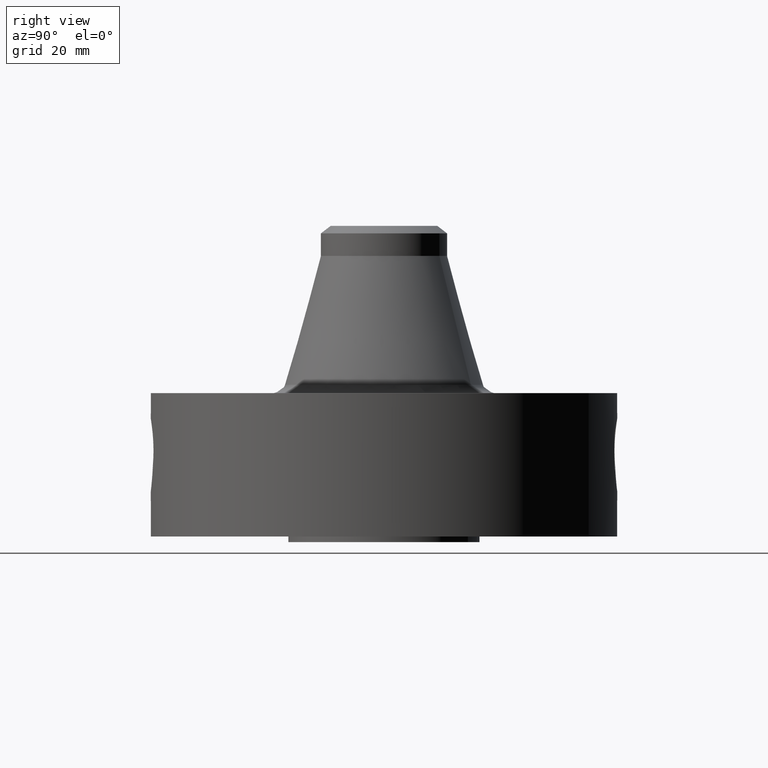
[diagram: clean part render]
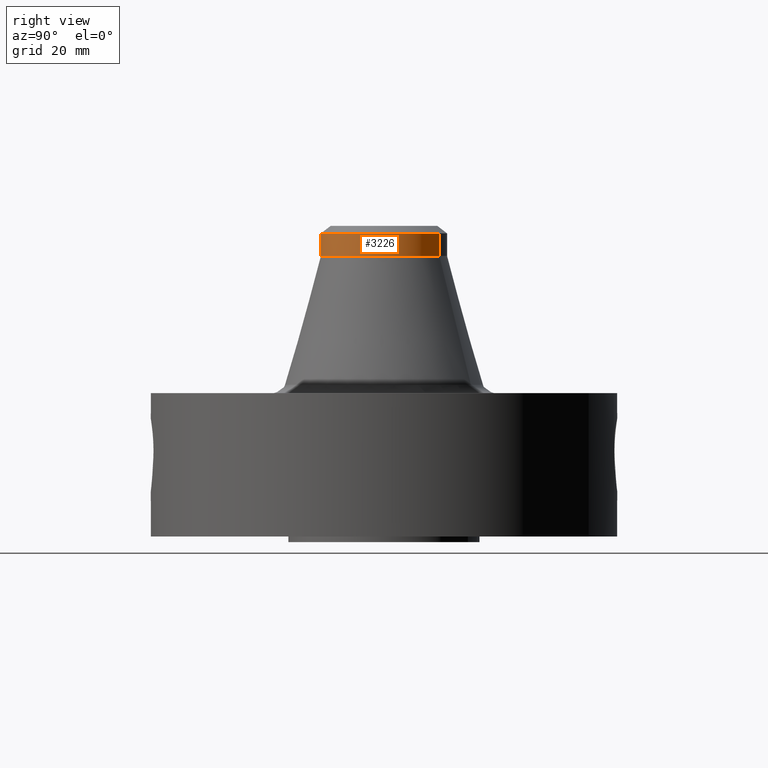
[diagram: same view with one face highlighted and labeled with its STEP entity id]
A machine part, right view. The second image highlights one B-rep face of the part: STEP entity #3226.
In plain terms, the highlighted cylindrical surface (partial cylindrical patch) has radius 16.764 mm, axis along (0, 0, -1).
Its self-contained STEP definition (entity closure, byte-faithful):
#2355=AXIS2_PLACEMENT_3D('Circle Axis2P3D',#2353,#2354,$) ;
#3191=AXIS2_PLACEMENT_3D('Cylinder Axis2P3D',#3188,#3189,#3190) ;
#3209=AXIS2_PLACEMENT_3D('Circle Axis2P3D',#3207,#3208,$) ;
#3216=AXIS2_PLACEMENT_3D('Circle Axis2P3D',#3214,#3215,$) ;
#2350=CARTESIAN_POINT('Vertex',(0.31642085548,0.57920449085,2.99492912713)) ;
#2353=CARTESIAN_POINT('Axis2P3D Location',(0.,0.,2.99492912713)) ;
#2357=CARTESIAN_POINT('Vertex',(-0.31642085548,-0.57920449085,2.99492912713)) ;
#3188=CARTESIAN_POINT('Axis2P3D Location',(0.,0.,1.65500000001)) ;
#3193=CARTESIAN_POINT('Line Origine',(-0.31642085548,-0.57920449085,3.11303936335)) ;
#3197=CARTESIAN_POINT('Vertex',(-0.31642085548,-0.57920449085,3.23114959957)) ;
#3200=CARTESIAN_POINT('Line Origine',(0.31642085548,0.57920449085,3.11303936335)) ;
#3204=CARTESIAN_POINT('Vertex',(0.31642085548,0.57920449085,3.23114959957)) ;
#3207=CARTESIAN_POINT('Axis2P3D Location',(0.,0.,3.23114959957)) ;
#3211=CARTESIAN_POINT('Vertex',(0.31642085548,-0.57920449085,3.23114959957)) ;
#3214=CARTESIAN_POINT('Axis2P3D Location',(0.,0.,3.23114959957)) ;
#2354=DIRECTION('Axis2P3D Direction',(0.,0.,-0.0393700787402)) ;
#3189=DIRECTION('Axis2P3D Direction',(0.,0.,-0.0393700787402)) ;
#3190=DIRECTION('Axis2P3D XDirection',(-0.0188750212049,-0.0345504945626,0.)) ;
#3194=DIRECTION('Vector Direction',(0.,0.,-0.0393700787402)) ;
#3201=DIRECTION('Vector Direction',(0.,0.,-0.0393700787402)) ;
#3208=DIRECTION('Axis2P3D Direction',(0.,0.,-0.0393700787402)) ;
#3215=DIRECTION('Axis2P3D Direction',(0.,0.,-0.0393700787402)) ;
#3195=VECTOR('Line Direction',#3194,0.0393700787402) ;
#3202=VECTOR('Line Direction',#3201,0.0393700787402) ;
#3220=ORIENTED_EDGE('',*,*,#3199,.F.) ;
#3221=ORIENTED_EDGE('',*,*,#2359,.F.) ;
#3222=ORIENTED_EDGE('',*,*,#3206,.T.) ;
#3223=ORIENTED_EDGE('',*,*,#3213,.F.) ;
#3224=ORIENTED_EDGE('',*,*,#3218,.T.) ;
#3226=ADVANCED_FACE('PartBody',(#3225),#3192,.T.) ;
#2356=CIRCLE('generated circle',#2355,0.660000000003) ;
#3210=CIRCLE('generated circle',#3209,0.660000000003) ;
#3217=CIRCLE('generated circle',#3216,0.660000000003) ;
#3192=CYLINDRICAL_SURFACE('generated cylinder',#3191,0.660000000003) ;
#2359=EDGE_CURVE('',#2351,#2358,#2356,.T.) ;
#3199=EDGE_CURVE('',#2358,#3198,#3196,.F.) ;
#3206=EDGE_CURVE('',#2351,#3205,#3203,.F.) ;
#3213=EDGE_CURVE('',#3212,#3205,#3210,.F.) ;
#3218=EDGE_CURVE('',#3212,#3198,#3217,.T.) ;
#3219=EDGE_LOOP('',(#3220,#3221,#3222,#3223,#3224)) ;
#3225=FACE_OUTER_BOUND('',#3219,.T.) ;
#3196=LINE('Line',#3193,#3195) ;
#3203=LINE('Line',#3200,#3202) ;
#2351=VERTEX_POINT('',#2350) ;
#2358=VERTEX_POINT('',#2357) ;
#3198=VERTEX_POINT('',#3197) ;
#3205=VERTEX_POINT('',#3204) ;
#3212=VERTEX_POINT('',#3211) ;